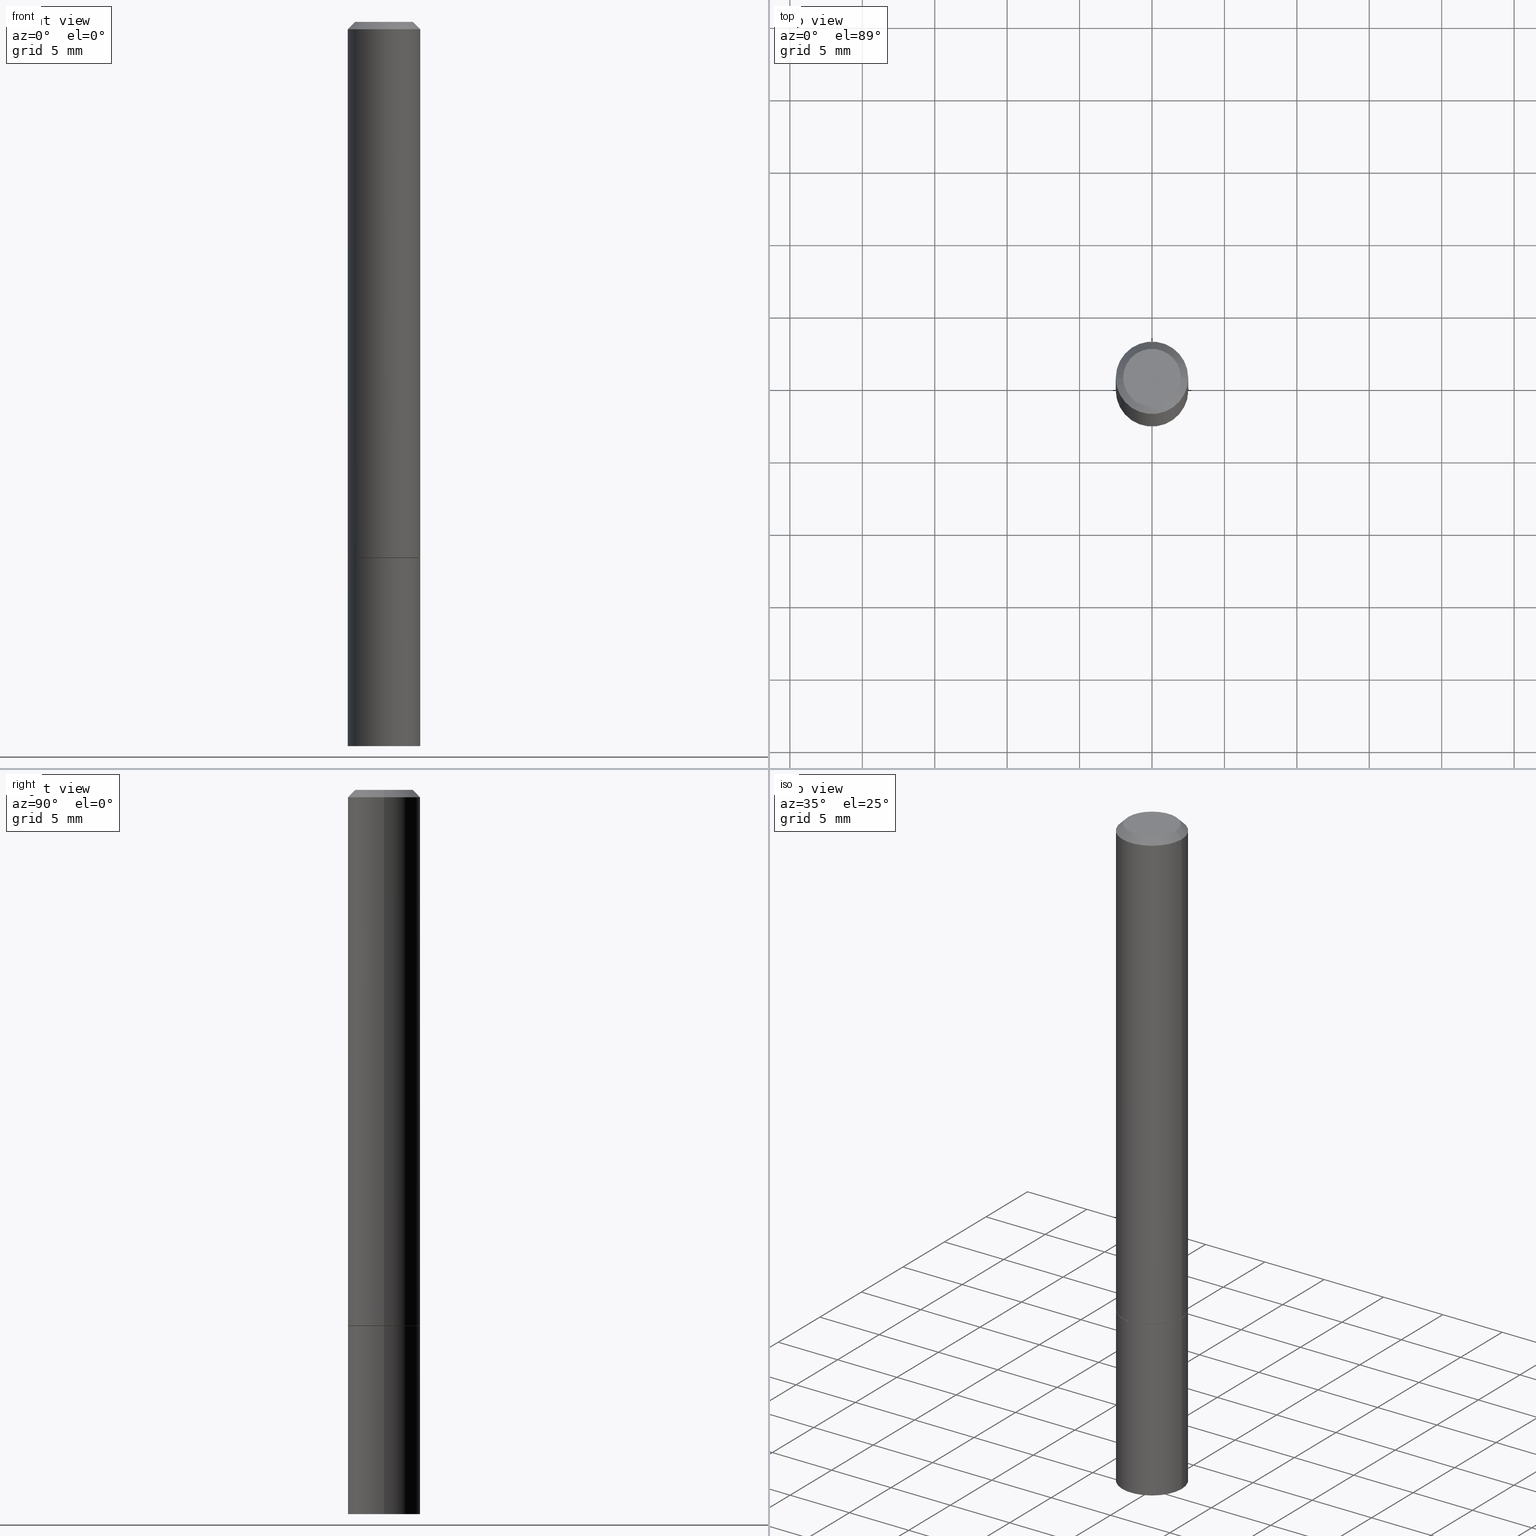
[diagram: canonical four-view strip — front | top / right | iso, engineering-drawing reading convention]
A machine part, canonical four-view strip (front | top / right | iso — engineering-drawing reading convention). The complete STEP part file that produces these views, byte-faithful:
ISO-10303-21;
HEADER;
FILE_DESCRIPTION (( 'STEP AP203' ),
    '1' );
FILE_NAME ('44589.STEP',
    '2024-02-28T07:05:57',
    ( '' ),
    ( '' ),
    'SwSTEP 2.0',
    'SolidWorks 2023',
    '' );
FILE_SCHEMA (( 'CONFIG_CONTROL_DESIGN' ));
ENDSEC;

DATA;
#1 = ADVANCED_FACE ( 'NONE', ( #22 ), #363, .T. ) ;
#2 = EDGE_LOOP ( 'NONE', ( #230, #277, #246, #162 ) ) ;
#3 = CARTESIAN_POINT ( 'NONE',  ( 3.562314409969888915E-29, -5.086040866292811234E-15, -1.456700000000000106 ) ) ;
#4 = CIRCLE ( 'NONE', #200, 0.09844999999999980156 ) ;
#5 = LOCAL_TIME ( 2, 5, 57.00000000000000000, #131 ) ;
#6 = EDGE_CURVE ( 'NONE', #177, #106, #257, .T. ) ;
#7 = AXIS2_PLACEMENT_3D ( 'NONE', #107, #249, #110 ) ;
#8 = EDGE_CURVE ( 'NONE', #342, #327, #144, .T. ) ;
#9 = PERSON_AND_ORGANIZATION ( #94, #349 ) ;
#10 = CARTESIAN_POINT ( 'NONE',  ( 5.478134220644863581E-16, 0.07844999999999982543, -2.739067110322441651E-16 ) ) ;
#11 = CARTESIAN_POINT ( 'NONE',  ( -0.09744999999999999496, -4.388318515946370941E-15, -1.456700000000000106 ) ) ;
#12 = CONICAL_SURFACE ( 'NONE', #338, 0.09744999999999999496, 0.7853981633974227439 ) ;
#13 = ADVANCED_FACE ( 'NONE', ( #60 ), #288, .T. ) ;
#14 = CARTESIAN_POINT ( 'NONE',  ( -0.09844999999999999585, 6.995293233558186035E-16, -4.842691596355954042E-30 ) ) ;
#15 = LINE ( 'NONE', #262, #217 ) ;
#16 = ORIENTED_EDGE ( 'NONE', *, *, #223, .F. ) ;
#17 =( CONVERSION_BASED_UNIT ( 'INCH', #247 ) LENGTH_UNIT ( ) NAMED_UNIT ( #232 ) );
#18 = DIRECTION ( 'NONE',  ( -2.445468806185136597E-29, 3.491481338843145583E-15, 1.000000000000000000 ) ) ;
#19 = ORIENTED_EDGE ( 'NONE', *, *, #236, .F. ) ;
#20 = CARTESIAN_POINT ( 'NONE',  ( 0.09844999999999999585, -7.560453691130944267E-15, -1.968500000000000139 ) ) ;
#21 = EDGE_CURVE ( 'NONE', #184, #119, #328, .T. ) ;
#22 = FACE_OUTER_BOUND ( 'NONE', #283, .T. ) ;
#23 = DIRECTION ( 'NONE',  ( -1.000000000000000000, 6.982962677686266711E-15, 0.000000000000000000 ) ) ;
#24 = DIRECTION ( 'NONE',  ( 1.000000000000000000, -6.982962677686265133E-15, 0.000000000000000000 ) ) ;
#25 = EDGE_LOOP ( 'NONE', ( #16, #341 ) ) ;
#26 = VERTEX_POINT ( 'NONE', #153 ) ;
#27 = LINE ( 'NONE', #50, #312 ) ;
#28 = AXIS2_PLACEMENT_3D ( 'NONE', #3, #280, #120 ) ;
#29 = ADVANCED_FACE ( 'NONE', ( #314 ), #47, .T. ) ;
#30 = APPROVAL_ROLE ( '' ) ;
#31 = DATE_AND_TIME ( #118, #222 ) ;
#32 = PLANE ( 'NONE',  #366 ) ;
#33 = AXIS2_PLACEMENT_3D ( 'NONE', #268, #239, #134 ) ;
#34 = CALENDAR_DATE ( 2024, 28, 2 ) ;
#35 = CARTESIAN_POINT ( 'NONE',  ( 3.559868941163703312E-29, -5.082549384953967438E-15, -1.455699999999999994 ) ) ;
#36 = CLOSED_SHELL ( 'NONE', ( #13, #29, #125, #1 ) ) ;
#37 = CONICAL_SURFACE ( 'NONE', #261, 0.09844999999999980156, 0.7853981633974471688 ) ;
#38 = DIRECTION ( 'NONE',  ( 1.000000000000000000, -6.982962677686266711E-15, 0.000000000000000000 ) ) ;
#39 = DIRECTION ( 'NONE',  ( -1.000000000000000000, 6.982962677686265922E-15, -4.876176775795935793E-29 ) ) ;
#40 = CARTESIAN_POINT ( 'NONE',  ( 0.000000000000000000, 0.000000000000000000, 0.000000000000000000 ) ) ;
#41 = EDGE_LOOP ( 'NONE', ( #76, #219, #121, #86 ) ) ;
#42 = EDGE_CURVE ( 'NONE', #327, #49, #73, .T. ) ;
#43 = AXIS2_PLACEMENT_3D ( 'NONE', #132, #298, #210 ) ;
#44 = DIRECTION ( 'NONE',  ( 1.000000000000000000, -6.982962677686264344E-15, 0.000000000000000000 ) ) ;
#45 = FACE_OUTER_BOUND ( 'NONE', #41, .T. ) ;
#46 = DIRECTION ( 'NONE',  ( -2.445468806185136597E-29, 3.491481338843145583E-15, 1.000000000000000000 ) ) ;
#47 = PLANE ( 'NONE',  #68 ) ;
#48 = FACE_OUTER_BOUND ( 'NONE', #74, .T. ) ;
#49 = VERTEX_POINT ( 'NONE', #123 ) ;
#50 = CARTESIAN_POINT ( 'NONE',  ( -0.09744999999999999496, -4.393616970294593343E-15, -1.456700000000000106 ) ) ;
#51 = PRODUCT_RELATED_PRODUCT_CATEGORY ( 'detail', '', ( #316 ) ) ;
#52 = ORIENTED_EDGE ( 'NONE', *, *, #112, .T. ) ;
#53 = UNCERTAINTY_MEASURE_WITH_UNIT (LENGTH_MEASURE( 1.000000000000000082E-05 ), #17, 'distance_accuracy_value', 'NONE');
#54 = ORIENTED_EDGE ( 'NONE', *, *, #91, .T. ) ;
#55 = DIRECTION ( 'NONE',  ( -2.445468806185136597E-29, 3.491481338843145583E-15, 1.000000000000000000 ) ) ;
#56 = CARTESIAN_POINT ( 'NONE',  ( 4.890937612370279289E-31, -6.982962677686299005E-17, -0.02000000000000002470 ) ) ;
#57 = ORIENTED_EDGE ( 'NONE', *, *, #193, .T. ) ;
#58 = CARTESIAN_POINT ( 'NONE',  ( 3.562314409969888915E-29, -5.086040866292811234E-15, -1.456700000000000106 ) ) ;
#59 = CARTESIAN_POINT ( 'NONE',  ( 3.562314409969888915E-29, -5.086040866292811234E-15, -1.456700000000000106 ) ) ;
#60 = FACE_OUTER_BOUND ( 'NONE', #220, .T. ) ;
#61 = APPROVAL_PERSON_ORGANIZATION ( #320, #183, #323 ) ;
#62 = COORDINATED_UNIVERSAL_TIME_OFFSET ( 5, 0, .BEHIND. ) ;
#63 = FACE_OUTER_BOUND ( 'NONE', #145, .T. ) ;
#64 = AXIS2_PLACEMENT_3D ( 'NONE', #10, #333, #318 ) ;
#65 = LOCAL_TIME ( 2, 5, 57.00000000000000000, #150 ) ;
#66 = DIRECTION ( 'NONE',  ( 2.438088387897960049E-29, -3.491481338843145188E-15, -1.000000000000000000 ) ) ;
#67 = DIRECTION ( 'NONE',  ( -2.445468806185136597E-29, 3.491481338843145583E-15, 1.000000000000000000 ) ) ;
#68 = AXIS2_PLACEMENT_3D ( 'NONE', #254, #351, #39 ) ;
#69 = ORIENTED_EDGE ( 'NONE', *, *, #8, .T. ) ;
#70 = APPROVAL_STATUS ( 'not_yet_approved' ) ;
#71 = CIRCLE ( 'NONE', #285, 0.07844999999999982543 ) ;
#72 = DIRECTION ( 'NONE',  ( -2.445468806185136597E-29, 3.491481338843145583E-15, 1.000000000000000000 ) ) ;
#73 = CIRCLE ( 'NONE', #286, 0.09844999999999999585 ) ;
#74 = EDGE_LOOP ( 'NONE', ( #87, #336 ) ) ;
#75 = APPROVAL_PERSON_ORGANIZATION ( #189, #340, #30 ) ;
#76 = ORIENTED_EDGE ( 'NONE', *, *, #78, .T. ) ;
#77 =( LENGTH_UNIT ( ) NAMED_UNIT ( * ) SI_UNIT ( $, .METRE. ) );
#78 = EDGE_CURVE ( 'NONE', #106, #177, #354, .T. ) ;
#79 = DIRECTION ( 'NONE',  ( -2.445468806185136597E-29, 3.491481338843145583E-15, 1.000000000000000000 ) ) ;
#80 = ORIENTED_EDGE ( 'NONE', *, *, #306, .F. ) ;
#81 = CARTESIAN_POINT ( 'NONE',  ( 4.890937612370279289E-31, -6.982962677686299005E-17, -0.02000000000000002470 ) ) ;
#82 = CC_DESIGN_PERSON_AND_ORGANIZATION_ASSIGNMENT ( #258, #292, ( #319 ) ) ;
#83 = VERTEX_POINT ( 'NONE', #315 ) ;
#84 = DIRECTION ( 'NONE',  ( -0.7071067811865294761, 7.493145998870289474E-15, 0.7071067811865655584 ) ) ;
#85 = SECURITY_CLASSIFICATION ( '', '', #122 ) ;
#86 = ORIENTED_EDGE ( 'NONE', *, *, #346, .F. ) ;
#87 = ORIENTED_EDGE ( 'NONE', *, *, #112, .F. ) ;
#88 = ORIENTED_EDGE ( 'NONE', *, *, #361, .F. ) ;
#89 = AXIS2_PLACEMENT_3D ( 'NONE', #211, #67, #38 ) ;
#90 = CC_DESIGN_APPROVAL ( #340, ( #319 ) ) ;
#91 = EDGE_CURVE ( 'NONE', #26, #184, #218, .T. ) ;
#92 = PERSON_AND_ORGANIZATION ( #94, #349 ) ;
#93 = EDGE_CURVE ( 'NONE', #119, #184, #4, .T. ) ;
#94 = PERSON ( 'UNSPECIFIED', 'UNSPECIFIED', 'UNSPECIFIED', ('UNSPECIFIED'), ('UNSPECIFIED'), ('UNSPECIFIED') ) ;
#95 = DIRECTION ( 'NONE',  ( 1.000000000000000000, -6.982962677686266711E-15, 4.876176775795935793E-29 ) ) ;
#96 = DIRECTION ( 'NONE',  ( 1.000000000000000000, -6.982962677686265922E-15, 4.876176775795935793E-29 ) ) ;
#97 = DATE_TIME_ROLE ( 'creation_date' ) ;
#98 = DATE_AND_TIME ( #297, #65 ) ;
#99 = DATE_AND_TIME ( #128, #5 ) ;
#100 = DIRECTION ( 'NONE',  ( 1.000000000000000000, -6.982962677686266711E-15, 0.000000000000000000 ) ) ;
#101 = PERSON_AND_ORGANIZATION_ROLE ( 'creator' ) ;
#102 = CARTESIAN_POINT ( 'NONE',  ( 3.562314409969888915E-29, -5.086040866292811234E-15, -1.456700000000000106 ) ) ;
#103 = CC_DESIGN_PERSON_AND_ORGANIZATION_ASSIGNMENT ( #235, #101, ( #252 ) ) ;
#104 = AXIS2_PLACEMENT_3D ( 'NONE', #289, #259, #362 ) ;
#105 = VECTOR ( 'NONE', #146, 39.37007874015748143 ) ;
#106 = VERTEX_POINT ( 'NONE', #186 ) ;
#107 = CARTESIAN_POINT ( 'NONE',  ( 0.000000000000000000, 0.000000000000000000, 0.000000000000000000 ) ) ;
#108 = FACE_OUTER_BOUND ( 'NONE', #302, .T. ) ;
#109 = EDGE_LOOP ( 'NONE', ( #224, #330 ) ) ;
#110 = DIRECTION ( 'NONE',  ( 1.000000000000000000, -6.982962677686266711E-15, 4.876176775795935793E-29 ) ) ;
#111 = VERTEX_POINT ( 'NONE', #343 ) ;
#112 = EDGE_CURVE ( 'NONE', #83, #253, #182, .T. ) ;
#113 = EDGE_LOOP ( 'NONE', ( #19, #57, #360, #282 ) ) ;
#114 = AXIS2_PLACEMENT_3D ( 'NONE', #173, #72, #241 ) ;
#115 = CC_DESIGN_SECURITY_CLASSIFICATION ( #85, ( #319 ) ) ;
#116 = ORIENTED_EDGE ( 'NONE', *, *, #255, .T. ) ;
#117 = CARTESIAN_POINT ( 'NONE',  ( 4.890937612370279289E-31, -6.982962677686299005E-17, -0.02000000000000002470 ) ) ;
#118 = CALENDAR_DATE ( 2024, 28, 2 ) ;
#119 = VERTEX_POINT ( 'NONE', #313 ) ;
#120 = DIRECTION ( 'NONE',  ( 1.000000000000000000, -6.982962677686265922E-15, 0.000000000000000000 ) ) ;
#121 = ORIENTED_EDGE ( 'NONE', *, *, #93, .F. ) ;
#122 = SECURITY_CLASSIFICATION_LEVEL ( 'unclassified' ) ;
#123 = CARTESIAN_POINT ( 'NONE',  ( -0.09844999999999999585, -5.279981617546952572E-15, -1.456700000000000106 ) ) ;
#124 = DIRECTION ( 'NONE',  ( -2.445468806185136597E-29, 3.491481338843145583E-15, 1.000000000000000000 ) ) ;
#125 = ADVANCED_FACE ( 'NONE', ( #108 ), #32, .F. ) ;
#126 = CC_DESIGN_APPROVAL ( #183, ( #252 ) ) ;
#127 = MANIFOLD_SOLID_BREP ( 'Body-Move/Copy2[1]', #36 ) ;
#128 = CALENDAR_DATE ( 2024, 28, 2 ) ;
#129 = PERSON_AND_ORGANIZATION_ROLE ( 'design_owner' ) ;
#130 = ADVANCED_FACE ( 'NONE', ( #63 ), #171, .T. ) ;
#131 = COORDINATED_UNIVERSAL_TIME_OFFSET ( 5, 0, .BEHIND. ) ;
#132 = CARTESIAN_POINT ( 'NONE',  ( 3.562314409969888915E-29, -5.086040866292811234E-15, -1.456700000000000106 ) ) ;
#133 = DATE_TIME_ROLE ( 'classification_date' ) ;
#134 = DIRECTION ( 'NONE',  ( 1.000000000000000000, -6.982962677686265922E-15, 0.000000000000000000 ) ) ;
#135 = APPLICATION_PROTOCOL_DEFINITION ( 'international standard', 'config_control_design', 1994, #335 ) ;
#136 = FACE_OUTER_BOUND ( 'NONE', #109, .T. ) ;
#137 = CARTESIAN_POINT ( 'NONE',  ( 0.000000000000000000, 0.000000000000000000, 0.000000000000000000 ) ) ;
#138 = CARTESIAN_POINT ( 'NONE',  ( 0.09744999999999999496, -5.766530579233336991E-15, -1.456700000000000106 ) ) ;
#139 = VECTOR ( 'NONE', #187, 39.37007874015748143 ) ;
#140 = LOCAL_TIME ( 2, 5, 57.00000000000000000, #256 ) ;
#141 = ORIENTED_EDGE ( 'NONE', *, *, #8, .F. ) ;
#142 = LINE ( 'NONE', #305, #105 ) ;
#143 = DIRECTION ( 'NONE',  ( -2.445468806185136597E-29, 3.491481338843145583E-15, 1.000000000000000000 ) ) ;
#144 = LINE ( 'NONE', #215, #139 ) ;
#145 = EDGE_LOOP ( 'NONE', ( #202, #250, #180, #213 ) ) ;
#146 = DIRECTION ( 'NONE',  ( -2.445468806185136877E-29, 3.491481338843145188E-15, 1.000000000000000000 ) ) ;
#147 = CC_DESIGN_PERSON_AND_ORGANIZATION_ASSIGNMENT ( #92, #191, ( #319 ) ) ;
#148 = AXIS2_PLACEMENT_3D ( 'NONE', #35, #46, #24 ) ;
#149 = CC_DESIGN_APPROVAL ( #174, ( #85 ) ) ;
#150 = COORDINATED_UNIVERSAL_TIME_OFFSET ( 5, 0, .BEHIND. ) ;
#151 = ADVANCED_FACE ( 'NONE', ( #300 ), #12, .T. ) ;
#152 = DESIGN_CONTEXT ( 'detailed design', #221, 'design' ) ;
#153 = CARTESIAN_POINT ( 'NONE',  ( -0.07844999999999982543, 5.827282354529176128E-16, -3.953055038153092165E-30 ) ) ;
#154 = CARTESIAN_POINT ( 'NONE',  ( -0.09844999999999980156, 6.176430488413486702E-16, -0.02000000000000002470 ) ) ;
#155 = CALENDAR_DATE ( 2024, 28, 2 ) ;
#156 = CARTESIAN_POINT ( 'NONE',  ( 0.000000000000000000, 0.000000000000000000, 0.000000000000000000 ) ) ;
#157 = CC_DESIGN_DATE_AND_TIME_ASSIGNMENT ( #231, #97, ( #252 ) ) ;
#158 = DIRECTION ( 'NONE',  ( -2.445468806185136877E-29, 3.491481338843145188E-15, 1.000000000000000000 ) ) ;
#159 = ORIENTED_EDGE ( 'NONE', *, *, #21, .T. ) ;
#160 = ORIENTED_EDGE ( 'NONE', *, *, #299, .T. ) ;
#161 = DIRECTION ( 'NONE',  ( 2.445468806185136597E-29, -3.491481338843145583E-15, -1.000000000000000000 ) ) ;
#162 = ORIENTED_EDGE ( 'NONE', *, *, #6, .F. ) ;
#163 = CARTESIAN_POINT ( 'NONE',  ( 0.09844999999999999585, -5.773513541911023795E-15, -1.456700000000000106 ) ) ;
#164 = CARTESIAN_POINT ( 'NONE',  ( 3.559868941163703312E-29, -5.082549384953967438E-15, -1.455699999999999994 ) ) ;
#165 = ORIENTED_EDGE ( 'NONE', *, *, #223, .T. ) ;
#166 = DIRECTION ( 'NONE',  ( 0.7071067811865294761, -2.468850131082068128E-15, 0.7071067811865655584 ) ) ;
#167 = CIRCLE ( 'NONE', #28, 0.09844999999999999585 ) ;
#168 = EDGE_LOOP ( 'NONE', ( #52, #160, #178, #80 ) ) ;
#169 = APPROVAL_STATUS ( 'not_yet_approved' ) ;
#170 = AXIS2_PLACEMENT_3D ( 'NONE', #269, #270, #96 ) ;
#171 = CYLINDRICAL_SURFACE ( 'NONE', #233, 0.09844999999999991258 ) ;
#172 = LOCAL_TIME ( 2, 5, 57.00000000000000000, #324 ) ;
#173 = CARTESIAN_POINT ( 'NONE',  ( 4.813905344975441835E-29, -6.872981015512731707E-15, -1.968500000000000139 ) ) ;
#174 = APPROVAL ( #310, 'UNSPECIFIED' ) ;
#175 = CIRCLE ( 'NONE', #33, 0.09844999999999999585 ) ;
#176 = PLANE ( 'NONE',  #64 ) ;
#177 = VERTEX_POINT ( 'NONE', #206 ) ;
#178 = ORIENTED_EDGE ( 'NONE', *, *, #78, .F. ) ;
#179 = EDGE_CURVE ( 'NONE', #177, #184, #353, .T. ) ;
#180 = ORIENTED_EDGE ( 'NONE', *, *, #346, .T. ) ;
#181 = DIRECTION ( 'NONE',  ( -1.000000000000000000, 6.982962677686266711E-15, 0.000000000000000000 ) ) ;
#182 = CIRCLE ( 'NONE', #104, 0.09744999999999999496 ) ;
#183 = APPROVAL ( #70, 'UNSPECIFIED' ) ;
#184 = VERTEX_POINT ( 'NONE', #154 ) ;
#185 = CYLINDRICAL_SURFACE ( 'NONE', #7, 0.09844999999999991258 ) ;
#186 = CARTESIAN_POINT ( 'NONE',  ( 0.09845000000000000973, -5.770022060572179999E-15, -1.455699999999999994 ) ) ;
#187 = DIRECTION ( 'NONE',  ( -2.445468806185136877E-29, 3.491481338843145188E-15, 1.000000000000000000 ) ) ;
#188 = ADVANCED_FACE ( 'NONE', ( #48 ), #321, .F. ) ;
#189 = PERSON_AND_ORGANIZATION ( #94, #349 ) ;
#190 = CONICAL_SURFACE ( 'NONE', #234, 0.09844999999999980156, 0.7853981633974471688 ) ;
#191 = PERSON_AND_ORGANIZATION_ROLE ( 'creator' ) ;
#192 = APPROVAL_DATE_TIME ( #31, #174 ) ;
#193 = EDGE_CURVE ( 'NONE', #111, #119, #15, .T. ) ;
#194 = DATE_AND_TIME ( #34, #140 ) ;
#195 = CIRCLE ( 'NONE', #43, 0.09744999999999999496 ) ;
#196 = DIRECTION ( 'NONE',  ( -2.445468806185136597E-29, 3.491481338843145583E-15, 1.000000000000000000 ) ) ;
#197 = PERSON_AND_ORGANIZATION_ROLE ( 'classification_officer' ) ;
#198 = PRODUCT_DEFINITION_SHAPE ( 'NONE', 'NONE',  #252 ) ;
#199 = DIRECTION ( 'NONE',  ( 0.7071067811865466846, -7.319954787623252890E-15, -0.7071067811865483499 ) ) ;
#200 = AXIS2_PLACEMENT_3D ( 'NONE', #56, #225, #100 ) ;
#201 = APPLICATION_PROTOCOL_DEFINITION ( 'international standard', 'config_control_design', 1994, #221 ) ;
#202 = ORIENTED_EDGE ( 'NONE', *, *, #179, .F. ) ;
#203 = LINE ( 'NONE', #14, #243 ) ;
#204 = ADVANCED_FACE ( 'NONE', ( #136 ), #176, .F. ) ;
#205 = APPROVAL_DATE_TIME ( #99, #183 ) ;
#206 = CARTESIAN_POINT ( 'NONE',  ( -0.09845000000000000973, -1.876660182509593708E-15, -1.455699999999999994 ) ) ;
#207 = VERTEX_POINT ( 'NONE', #325 ) ;
#208 = DIRECTION ( 'NONE',  ( 1.000000000000000000, 0.000000000000000000, 0.000000000000000000 ) ) ;
#209 = CIRCLE ( 'NONE', #339, 0.07844999999999982543 ) ;
#210 = DIRECTION ( 'NONE',  ( 1.000000000000000000, -6.982962677686264344E-15, 0.000000000000000000 ) ) ;
#211 = CARTESIAN_POINT ( 'NONE',  ( 4.890937612370279289E-31, -6.982962677686299005E-17, -0.02000000000000002470 ) ) ;
#212 = DIRECTION ( 'NONE',  ( 2.445468806185136597E-29, -3.491481338843145583E-15, -1.000000000000000000 ) ) ;
#213 = ORIENTED_EDGE ( 'NONE', *, *, #21, .F. ) ;
#214 = FACE_OUTER_BOUND ( 'NONE', #113, .T. ) ;
#215 = CARTESIAN_POINT ( 'NONE',  ( 0.09844999999999999585, -6.874726756182129545E-16, 4.800596035771099214E-30 ) ) ;
#216 =( NAMED_UNIT ( * ) PLANE_ANGLE_UNIT ( ) SI_UNIT ( $, .RADIAN. ) );
#217 = VECTOR ( 'NONE', #199, 39.37007874015748143 ) ;
#218 = LINE ( 'NONE', #352, #274 ) ;
#219 = ORIENTED_EDGE ( 'NONE', *, *, #179, .T. ) ;
#220 = EDGE_LOOP ( 'NONE', ( #165, #337, #334, #141 ) ) ;
#221 = APPLICATION_CONTEXT ( 'configuration controlled 3d designs of mechanical parts and assemblies' ) ;
#222 = LOCAL_TIME ( 2, 5, 57.00000000000000000, #62 ) ;
#223 = EDGE_CURVE ( 'NONE', #342, #207, #265, .T. ) ;
#224 = ORIENTED_EDGE ( 'NONE', *, *, #271, .T. ) ;
#225 = DIRECTION ( 'NONE',  ( -2.445468806185136597E-29, 3.491481338843145583E-15, 1.000000000000000000 ) ) ;
#226 = EDGE_CURVE ( 'NONE', #253, #83, #195, .T. ) ;
#227 =( GEOMETRIC_REPRESENTATION_CONTEXT ( 3 ) GLOBAL_UNCERTAINTY_ASSIGNED_CONTEXT ( ( #53 ) ) GLOBAL_UNIT_ASSIGNED_CONTEXT ( ( #17, #216, #263 ) ) REPRESENTATION_CONTEXT ( 'NONE', 'WORKASPACE' ) );
#228 = DIRECTION ( 'NONE',  ( -1.000000000000000000, 6.982962677686265922E-15, -4.876176775795935793E-29 ) ) ;
#229 = CC_DESIGN_PERSON_AND_ORGANIZATION_ASSIGNMENT ( #347, #197, ( #85 ) ) ;
#230 = ORIENTED_EDGE ( 'NONE', *, *, #299, .F. ) ;
#231 = DATE_AND_TIME ( #155, #172 ) ;
#232 = DIMENSIONAL_EXPONENTS ( 1.000000000000000000, 0.000000000000000000, 0.000000000000000000, 0.000000000000000000, 0.000000000000000000, 0.000000000000000000, 0.000000000000000000 ) ;
#233 = AXIS2_PLACEMENT_3D ( 'NONE', #293, #124, #95 ) ;
#234 = AXIS2_PLACEMENT_3D ( 'NONE', #117, #212, #181 ) ;
#235 = PERSON_AND_ORGANIZATION ( #94, #349 ) ;
#236 = EDGE_CURVE ( 'NONE', #111, #26, #71, .T. ) ;
#237 = DIRECTION ( 'NONE',  ( -2.445468806185136597E-29, 3.491481338843145583E-15, 1.000000000000000000 ) ) ;
#238 = ADVANCED_BREP_SHAPE_REPRESENTATION ( '44589', ( #127, #244, #291 ), #227 ) ;
#239 = DIRECTION ( 'NONE',  ( -2.445468806185136597E-29, 3.491481338843145583E-15, 1.000000000000000000 ) ) ;
#240 = DIRECTION ( 'NONE',  ( 0.000000000000000000, 0.000000000000000000, 1.000000000000000000 ) ) ;
#241 = DIRECTION ( 'NONE',  ( 1.000000000000000000, -6.982962677686265922E-15, 0.000000000000000000 ) ) ;
#242 = DIRECTION ( 'NONE',  ( -2.445468806185136597E-29, 3.491481338843145583E-15, 1.000000000000000000 ) ) ;
#244 = MANIFOLD_SOLID_BREP ( 'Body-Move/Copy2[2]', #348 ) ;
#243 = VECTOR ( 'NONE', #365, 39.37007874015748143 ) ;
#245 = CARTESIAN_POINT ( 'NONE',  ( -0.09844999999999991258, 6.995293233558180118E-16, -4.842691596355949838E-30 ) ) ;
#246 = ORIENTED_EDGE ( 'NONE', *, *, #306, .T. ) ;
#247 = LENGTH_MEASURE_WITH_UNIT ( LENGTH_MEASURE( 0.02539999999999999897 ), #77 );
#248 = DIRECTION ( 'NONE',  ( 1.000000000000000000, -6.982962677686265133E-15, 0.000000000000000000 ) ) ;
#249 = DIRECTION ( 'NONE',  ( -2.445468806185136597E-29, 3.491481338843145583E-15, 1.000000000000000000 ) ) ;
#250 = ORIENTED_EDGE ( 'NONE', *, *, #6, .T. ) ;
#251 = ORIENTED_EDGE ( 'NONE', *, *, #271, .F. ) ;
#252 = PRODUCT_DEFINITION ( 'UNKNOWN', '', #319, #152 ) ;
#253 = VERTEX_POINT ( 'NONE', #11 ) ;
#254 = CARTESIAN_POINT ( 'NONE',  ( 6.874726756182609764E-16, 0.09844999999999311247, -1.968500000000000361 ) ) ;
#255 = EDGE_CURVE ( 'NONE', #207, #342, #175, .T. ) ;
#256 = COORDINATED_UNIVERSAL_TIME_OFFSET ( 5, 0, .BEHIND. ) ;
#257 = CIRCLE ( 'NONE', #296, 0.09845000000000000973 ) ;
#258 = PERSON_AND_ORGANIZATION ( #94, #349 ) ;
#259 = DIRECTION ( 'NONE',  ( -2.445468806185136597E-29, 3.491481338843145583E-15, 1.000000000000000000 ) ) ;
#260 = AXIS2_PLACEMENT_3D ( 'NONE', #364, #143, #311 ) ;
#261 = AXIS2_PLACEMENT_3D ( 'NONE', #81, #161, #23 ) ;
#262 = CARTESIAN_POINT ( 'NONE',  ( 0.09844999999999980156, -7.452456546574689274E-16, -0.02000000000000002470 ) ) ;
#263 =( NAMED_UNIT ( * ) SI_UNIT ( $, .STERADIAN. ) SOLID_ANGLE_UNIT ( ) );
#264 = DIRECTION ( 'NONE',  ( 1.000000000000000000, -6.982962677686265922E-15, 4.876176775795936914E-29 ) ) ;
#265 = CIRCLE ( 'NONE', #114, 0.09844999999999999585 ) ;
#266 = AXIS2_PLACEMENT_3D ( 'NONE', #58, #55, #284 ) ;
#267 = DIRECTION ( 'NONE',  ( -0.7071067811865466846, 2.468850131082247989E-15, -0.7071067811865483499 ) ) ;
#268 = CARTESIAN_POINT ( 'NONE',  ( 4.813905344975441835E-29, -6.872981015512731707E-15, -1.968500000000000139 ) ) ;
#269 = CARTESIAN_POINT ( 'NONE',  ( 3.562314409969888915E-29, -5.086040866292811234E-15, -1.456700000000000106 ) ) ;
#270 = DIRECTION ( 'NONE',  ( -2.438088387897960049E-29, 3.491481338843145188E-15, 1.000000000000000000 ) ) ;
#271 = EDGE_CURVE ( 'NONE', #26, #111, #209, .T. ) ;
#272 = EDGE_LOOP ( 'NONE', ( #304, #251, #54, #159 ) ) ;
#273 = LINE ( 'NONE', #138, #287 ) ;
#274 = VECTOR ( 'NONE', #267, 39.37007874015748143 ) ;
#275 = CONICAL_SURFACE ( 'NONE', #266, 0.09744999999999999496, 0.7853981633974227439 ) ;
#276 = ORIENTED_EDGE ( 'NONE', *, *, #361, .T. ) ;
#277 = ORIENTED_EDGE ( 'NONE', *, *, #226, .T. ) ;
#278 = FACE_OUTER_BOUND ( 'NONE', #272, .T. ) ;
#279 = DIRECTION ( 'NONE',  ( -2.445468806185136597E-29, 3.491481338843145583E-15, 1.000000000000000000 ) ) ;
#280 = DIRECTION ( 'NONE',  ( -2.445468806185136597E-29, 3.491481338843145583E-15, 1.000000000000000000 ) ) ;
#281 = EDGE_CURVE ( 'NONE', #207, #49, #203, .T. ) ;
#282 = ORIENTED_EDGE ( 'NONE', *, *, #91, .F. ) ;
#283 = EDGE_LOOP ( 'NONE', ( #308, #116, #69, #88 ) ) ;
#284 = DIRECTION ( 'NONE',  ( 1.000000000000000000, -6.982962677686264344E-15, 0.000000000000000000 ) ) ;
#285 = AXIS2_PLACEMENT_3D ( 'NONE', #156, #79, #264 ) ;
#286 = AXIS2_PLACEMENT_3D ( 'NONE', #59, #196, #322 ) ;
#287 = VECTOR ( 'NONE', #166, 39.37007874015748143 ) ;
#288 = CYLINDRICAL_SURFACE ( 'NONE', #344, 0.09844999999999999585 ) ;
#289 = CARTESIAN_POINT ( 'NONE',  ( 3.562314409969888915E-29, -5.086040866292811234E-15, -1.456700000000000106 ) ) ;
#290 = VECTOR ( 'NONE', #158, 39.37007874015748143 ) ;
#291 = AXIS2_PLACEMENT_3D ( 'NONE', #357, #240, #208 ) ;
#292 = PERSON_AND_ORGANIZATION_ROLE ( 'design_supplier' ) ;
#293 = CARTESIAN_POINT ( 'NONE',  ( 0.000000000000000000, 0.000000000000000000, 0.000000000000000000 ) ) ;
#294 = CC_DESIGN_PERSON_AND_ORGANIZATION_ASSIGNMENT ( #9, #129, ( #316 ) ) ;
#295 = CARTESIAN_POINT ( 'NONE',  ( 6.874726756182484532E-16, 0.09844999999999490270, -1.456700000000000328 ) ) ;
#296 = AXIS2_PLACEMENT_3D ( 'NONE', #164, #279, #248 ) ;
#297 = CALENDAR_DATE ( 2024, 28, 2 ) ;
#298 = DIRECTION ( 'NONE',  ( -2.445468806185136597E-29, 3.491481338843145583E-15, 1.000000000000000000 ) ) ;
#299 = EDGE_CURVE ( 'NONE', #253, #177, #27, .T. ) ;
#300 = FACE_OUTER_BOUND ( 'NONE', #168, .T. ) ;
#301 = ORIENTED_EDGE ( 'NONE', *, *, #42, .T. ) ;
#302 = EDGE_LOOP ( 'NONE', ( #301, #276 ) ) ;
#303 = FACE_OUTER_BOUND ( 'NONE', #2, .T. ) ;
#304 = ORIENTED_EDGE ( 'NONE', *, *, #193, .F. ) ;
#305 = CARTESIAN_POINT ( 'NONE',  ( 0.09844999999999991258, -6.874726756182123629E-16, 4.800596035771094310E-30 ) ) ;
#306 = EDGE_CURVE ( 'NONE', #83, #106, #273, .T. ) ;
#307 = SHAPE_DEFINITION_REPRESENTATION ( #198, #238 ) ;
#308 = ORIENTED_EDGE ( 'NONE', *, *, #281, .F. ) ;
#309 = ADVANCED_FACE ( 'NONE', ( #45 ), #185, .T. ) ;
#310 = APPROVAL_STATUS ( 'not_yet_approved' ) ;
#311 = DIRECTION ( 'NONE',  ( 1.000000000000000000, -6.982962677686266711E-15, 4.876176775795936353E-29 ) ) ;
#312 = VECTOR ( 'NONE', #84, 39.37007874015748143 ) ;
#313 = CARTESIAN_POINT ( 'NONE',  ( 0.09844999999999980156, -7.452456546574689274E-16, -0.02000000000000002470 ) ) ;
#314 = FACE_OUTER_BOUND ( 'NONE', #25, .T. ) ;
#315 = CARTESIAN_POINT ( 'NONE',  ( 0.09744999999999999496, -5.766530579233336991E-15, -1.456700000000000106 ) ) ;
#316 = PRODUCT ( '44589', '44589', '', ( #331 ) ) ;
#317 = ADVANCED_FACE ( 'NONE', ( #214 ), #190, .T. ) ;
#318 = DIRECTION ( 'NONE',  ( -1.000000000000000000, 6.982962677686265922E-15, -4.876176775795935793E-29 ) ) ;
#319 = PRODUCT_DEFINITION_FORMATION_WITH_SPECIFIED_SOURCE ( 'ANY', '', #316, .NOT_KNOWN. ) ;
#320 = PERSON_AND_ORGANIZATION ( #94, #349 ) ;
#321 = PLANE ( 'NONE',  #170 ) ;
#322 = DIRECTION ( 'NONE',  ( 1.000000000000000000, -6.982962677686265922E-15, 0.000000000000000000 ) ) ;
#323 = APPROVAL_ROLE ( '' ) ;
#324 = COORDINATED_UNIVERSAL_TIME_OFFSET ( 5, 0, .BEHIND. ) ;
#325 = CARTESIAN_POINT ( 'NONE',  ( -0.09844999999999999585, -5.279981617546952572E-15, -1.968500000000000139 ) ) ;
#326 = ADVANCED_FACE ( 'NONE', ( #303 ), #275, .T. ) ;
#327 = VERTEX_POINT ( 'NONE', #163 ) ;
#328 = CIRCLE ( 'NONE', #89, 0.09844999999999980156 ) ;
#329 = APPROVAL_PERSON_ORGANIZATION ( #355, #174, #359 ) ;
#330 = ORIENTED_EDGE ( 'NONE', *, *, #236, .T. ) ;
#331 = MECHANICAL_CONTEXT ( 'NONE', #335, 'mechanical' ) ;
#332 = ADVANCED_FACE ( 'NONE', ( #278 ), #37, .T. ) ;
#333 = DIRECTION ( 'NONE',  ( 2.438088387897960049E-29, -3.491481338843145188E-15, -1.000000000000000000 ) ) ;
#334 = ORIENTED_EDGE ( 'NONE', *, *, #42, .F. ) ;
#335 = APPLICATION_CONTEXT ( 'configuration controlled 3d designs of mechanical parts and assemblies' ) ;
#336 = ORIENTED_EDGE ( 'NONE', *, *, #226, .F. ) ;
#337 = ORIENTED_EDGE ( 'NONE', *, *, #281, .T. ) ;
#338 = AXIS2_PLACEMENT_3D ( 'NONE', #102, #18, #44 ) ;
#339 = AXIS2_PLACEMENT_3D ( 'NONE', #40, #237, #356 ) ;
#340 = APPROVAL ( #169, 'UNSPECIFIED' ) ;
#341 = ORIENTED_EDGE ( 'NONE', *, *, #255, .F. ) ;
#342 = VERTEX_POINT ( 'NONE', #20 ) ;
#343 = CARTESIAN_POINT ( 'NONE',  ( 0.07844999999999982543, -6.417258612913221441E-16, 4.159044147803931210E-30 ) ) ;
#344 = AXIS2_PLACEMENT_3D ( 'NONE', #137, #242, #358 ) ;
#345 = APPROVAL_DATE_TIME ( #194, #340 ) ;
#346 = EDGE_CURVE ( 'NONE', #106, #119, #142, .T. ) ;
#347 = PERSON_AND_ORGANIZATION ( #94, #349 ) ;
#348 = CLOSED_SHELL ( 'NONE', ( #151, #309, #317, #332, #130, #326, #188, #204 ) ) ;
#349 = ORGANIZATION ( 'UNSPECIFIED', 'UNSPECIFIED', '' ) ;
#350 = CC_DESIGN_DATE_AND_TIME_ASSIGNMENT ( #98, #133, ( #85 ) ) ;
#351 = DIRECTION ( 'NONE',  ( 2.438088387897960049E-29, -3.491481338843145188E-15, -1.000000000000000000 ) ) ;
#352 = CARTESIAN_POINT ( 'NONE',  ( -0.09844999999999980156, 6.176430488413486702E-16, -0.02000000000000002470 ) ) ;
#353 = LINE ( 'NONE', #245, #290 ) ;
#354 = CIRCLE ( 'NONE', #148, 0.09845000000000000973 ) ;
#355 = PERSON_AND_ORGANIZATION ( #94, #349 ) ;
#356 = DIRECTION ( 'NONE',  ( 1.000000000000000000, -6.982962677686265922E-15, 4.876176775795936914E-29 ) ) ;
#357 = CARTESIAN_POINT ( 'NONE',  ( 0.000000000000000000, 0.000000000000000000, 0.000000000000000000 ) ) ;
#358 = DIRECTION ( 'NONE',  ( 1.000000000000000000, -6.982962677686266711E-15, 4.876176775795936353E-29 ) ) ;
#359 = APPROVAL_ROLE ( '' ) ;
#360 = ORIENTED_EDGE ( 'NONE', *, *, #93, .T. ) ;
#361 = EDGE_CURVE ( 'NONE', #49, #327, #167, .T. ) ;
#362 = DIRECTION ( 'NONE',  ( 1.000000000000000000, -6.982962677686264344E-15, 0.000000000000000000 ) ) ;
#363 = CYLINDRICAL_SURFACE ( 'NONE', #260, 0.09844999999999999585 ) ;
#364 = CARTESIAN_POINT ( 'NONE',  ( 0.000000000000000000, 0.000000000000000000, 0.000000000000000000 ) ) ;
#365 = DIRECTION ( 'NONE',  ( -2.445468806185136877E-29, 3.491481338843145188E-15, 1.000000000000000000 ) ) ;
#366 = AXIS2_PLACEMENT_3D ( 'NONE', #295, #66, #228 ) ;
ENDSEC;
END-ISO-10303-21;
